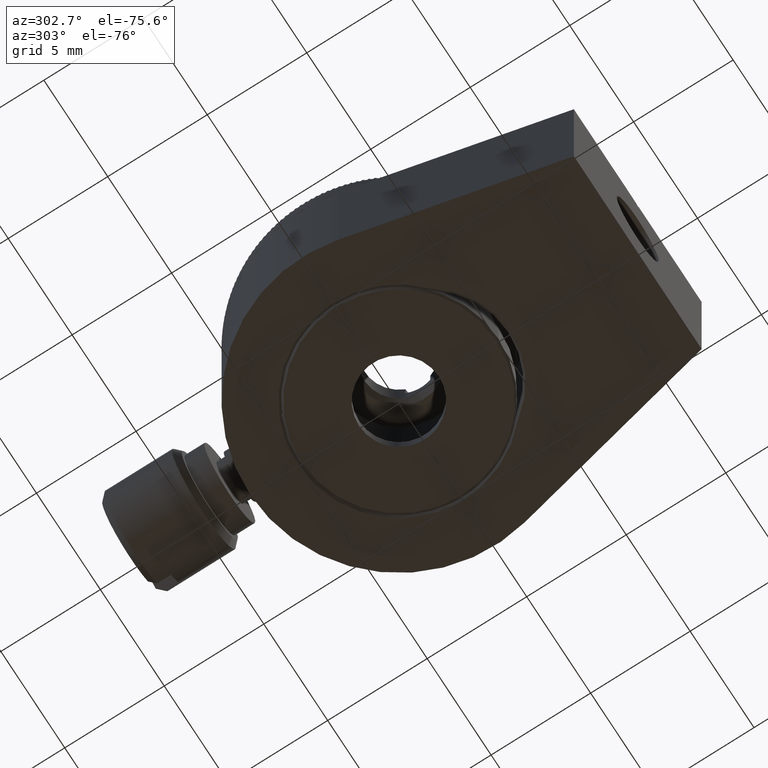
[diagram: clean part render]
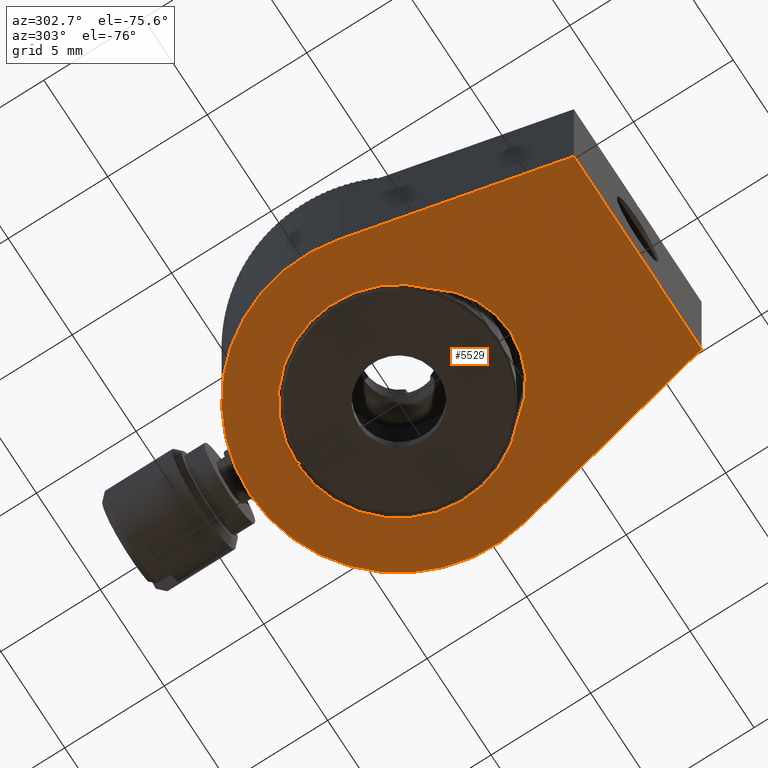
[diagram: same view with one face highlighted and labeled with its STEP entity id]
A machine part, auxiliary view. The second image highlights one B-rep face of the part: STEP entity #5529.
In plain terms, the highlighted planar face has unit normal (0, 0, 1).
Its self-contained STEP definition (entity closure, byte-faithful):
#391 = LINE ( 'NONE', #58453, #55314 ) ;
#1064 = EDGE_CURVE ( 'NONE', #20175, #62872, #28682, .T. ) ;
#1712 = VERTEX_POINT ( 'NONE', #32850 ) ;
#2182 = VERTEX_POINT ( 'NONE', #50251 ) ;
#2764 = VERTEX_POINT ( 'NONE', #60292 ) ;
#4498 = CARTESIAN_POINT ( 'NONE',  ( 0.000000000000000000, 0.000000000000000000, -7.500000000000000000 ) ) ;
#4624 = FACE_OUTER_BOUND ( 'NONE', #25780, .T. ) ;
#4992 = CARTESIAN_POINT ( 'NONE',  ( 5.000000000000001776, 0.000000000000000000, 11.99999999999999822 ) ) ;
#5321 = DIRECTION ( 'NONE',  ( 0.000000000000000000, 0.000000000000000000, 1.000000000000000000 ) ) ;
#5529 = ADVANCED_FACE ( 'NONE', ( #44712, #4624 ), #54359, .F. ) ;
#5872 = DIRECTION ( 'NONE',  ( 0.000000000000000000, 0.000000000000000000, 1.000000000000000000 ) ) ;
#9743 = CARTESIAN_POINT ( 'NONE',  ( -4.999999999999998224, 0.000000000000000000, 12.00000000000000000 ) ) ;
#10234 = ORIENTED_EDGE ( 'NONE', *, *, #19130, .F. ) ;
#10341 = DIRECTION ( 'NONE',  ( 0.2183911156568743572, 0.000000000000000000, 0.9758613224235017647 ) ) ;
#10379 = DIRECTION ( 'NONE',  ( 0.000000000000000000, 0.000000000000000000, 1.000000000000000000 ) ) ;
#12274 = AXIS2_PLACEMENT_3D ( 'NONE', #50512, #44761, #5321 ) ;
#13531 = EDGE_CURVE ( 'NONE', #2764, #38711, #58832, .T. ) ;
#13743 = VECTOR ( 'NONE', #16859, 1000.000000000000000 ) ;
#13873 = EDGE_LOOP ( 'NONE', ( #17211, #62962, #49132 ) ) ;
#13961 = AXIS2_PLACEMENT_3D ( 'NONE', #54333, #35397, #10379 ) ;
#14094 = EDGE_CURVE ( 'NONE', #20349, #1712, #44439, .T. ) ;
#14909 = EDGE_CURVE ( 'NONE', #38711, #2182, #32249, .T. ) ;
#15350 = AXIS2_PLACEMENT_3D ( 'NONE', #52485, #52159, #22663 ) ;
#15790 = VERTEX_POINT ( 'NONE', #21500 ) ;
#16859 = DIRECTION ( 'NONE',  ( 0.2183911156568740519, -0.000000000000000000, -0.9758613224235018757 ) ) ;
#17211 = ORIENTED_EDGE ( 'NONE', *, *, #14094, .T. ) ;
#17381 = CIRCLE ( 'NONE', #15350, 5.099999999999993427 ) ;
#17825 = AXIS2_PLACEMENT_3D ( 'NONE', #39496, #59086, #58118 ) ;
#18526 = EDGE_CURVE ( 'NONE', #1712, #15790, #17381, .T. ) ;
#19130 = EDGE_CURVE ( 'NONE', #62872, #2764, #391, .T. ) ;
#20175 = VERTEX_POINT ( 'NONE', #4498 ) ;
#20349 = VERTEX_POINT ( 'NONE', #31405 ) ;
#21500 = CARTESIAN_POINT ( 'NONE',  ( -3.382758571869346031, 0.000000000000000000, 3.816666666666660213 ) ) ;
#22663 = DIRECTION ( 'NONE',  ( 0.000000000000000000, 0.000000000000000000, 1.000000000000000000 ) ) ;
#25525 = ORIENTED_EDGE ( 'NONE', *, *, #13531, .F. ) ;
#25780 = EDGE_LOOP ( 'NONE', ( #43491, #28616, #25525, #10234, #36001 ) ) ;
#27356 = AXIS2_PLACEMENT_3D ( 'NONE', #54033, #58523, #44076 ) ;
#27997 = VECTOR ( 'NONE', #39244, 1000.000000000000000 ) ;
#28192 = EDGE_CURVE ( 'NONE', #2182, #20175, #60103, .T. ) ;
#28616 = ORIENTED_EDGE ( 'NONE', *, *, #14909, .F. ) ;
#28682 = CIRCLE ( 'NONE', #12274, 7.500000000000000000 ) ;
#31405 = CARTESIAN_POINT ( 'NONE',  ( 3.382758571869346920, 0.000000000000000000, 3.816666666666658880 ) ) ;
#32249 = LINE ( 'NONE', #56947, #13743 ) ;
#32850 = CARTESIAN_POINT ( 'NONE',  ( 0.000000000000000000, 0.000000000000000000, -5.099999999999993427 ) ) ;
#35308 = EDGE_CURVE ( 'NONE', #15790, #20349, #48401, .T. ) ;
#35397 = DIRECTION ( 'NONE',  ( 0.000000000000000000, 1.000000000000000000, 0.000000000000000000 ) ) ;
#36001 = ORIENTED_EDGE ( 'NONE', *, *, #1064, .F. ) ;
#36825 = CARTESIAN_POINT ( 'NONE',  ( -7.318959918176263457, 0.000000000000000000, 1.637933367426557929 ) ) ;
#38711 = VERTEX_POINT ( 'NONE', #4992 ) ;
#39244 = DIRECTION ( 'NONE',  ( 1.000000000000000000, 0.000000000000000000, -1.734723475976807094E-16 ) ) ;
#39496 = CARTESIAN_POINT ( 'NONE',  ( 0.000000000000000000, 0.000000000000000000, 0.000000000000000000 ) ) ;
#43491 = ORIENTED_EDGE ( 'NONE', *, *, #28192, .F. ) ;
#44076 = DIRECTION ( 'NONE',  ( 0.000000000000000000, -0.000000000000000000, 1.000000000000000000 ) ) ;
#44439 = CIRCLE ( 'NONE', #17825, 5.099999999999993427 ) ;
#44712 = FACE_BOUND ( 'NONE', #13873, .T. ) ;
#44761 = DIRECTION ( 'NONE',  ( 0.000000000000000000, 1.000000000000000000, 0.000000000000000000 ) ) ;
#48401 = CIRCLE ( 'NONE', #59703, 4.099999999999994316 ) ;
#49132 = ORIENTED_EDGE ( 'NONE', *, *, #35308, .T. ) ;
#49826 = DIRECTION ( 'NONE',  ( 0.000000000000000000, 1.000000000000000000, 0.000000000000000000 ) ) ;
#50251 = CARTESIAN_POINT ( 'NONE',  ( 7.318959918176263457, 0.000000000000000000, 1.637933367426556153 ) ) ;
#50512 = CARTESIAN_POINT ( 'NONE',  ( 0.000000000000000000, 0.000000000000000000, 0.000000000000000000 ) ) ;
#52159 = DIRECTION ( 'NONE',  ( 0.000000000000000000, 1.000000000000000000, 0.000000000000000000 ) ) ;
#52485 = CARTESIAN_POINT ( 'NONE',  ( 0.000000000000000000, 0.000000000000000000, 0.000000000000000000 ) ) ;
#54033 = CARTESIAN_POINT ( 'NONE',  ( 0.000000000000000000, 0.000000000000000000, 0.000000000000000000 ) ) ;
#54333 = CARTESIAN_POINT ( 'NONE',  ( 0.000000000000000000, 0.000000000000000000, 0.000000000000000000 ) ) ;
#54359 = PLANE ( 'NONE',  #27356 ) ;
#55314 = VECTOR ( 'NONE', #10341, 1000.000000000000114 ) ;
#56947 = CARTESIAN_POINT ( 'NONE',  ( 7.318959918176263457, 0.000000000000000000, 1.637933367426556153 ) ) ;
#58118 = DIRECTION ( 'NONE',  ( 0.000000000000000000, 0.000000000000000000, 1.000000000000000000 ) ) ;
#58453 = CARTESIAN_POINT ( 'NONE',  ( -7.318959918176263457, 0.000000000000000000, 1.637933367426557929 ) ) ;
#58523 = DIRECTION ( 'NONE',  ( 0.000000000000000000, 1.000000000000000000, 0.000000000000000000 ) ) ;
#58832 = LINE ( 'NONE', #9743, #27997 ) ;
#59086 = DIRECTION ( 'NONE',  ( 0.000000000000000000, 1.000000000000000000, 0.000000000000000000 ) ) ;
#59703 = AXIS2_PLACEMENT_3D ( 'NONE', #59787, #49826, #5872 ) ;
#59787 = CARTESIAN_POINT ( 'NONE',  ( 1.836970198721029934E-16, 0.000000000000000000, 1.500000000000000000 ) ) ;
#60103 = CIRCLE ( 'NONE', #13961, 7.500000000000000000 ) ;
#60292 = CARTESIAN_POINT ( 'NONE',  ( -4.999999999999998224, 0.000000000000000000, 12.00000000000000000 ) ) ;
#62872 = VERTEX_POINT ( 'NONE', #36825 ) ;
#62962 = ORIENTED_EDGE ( 'NONE', *, *, #18526, .T. ) ;